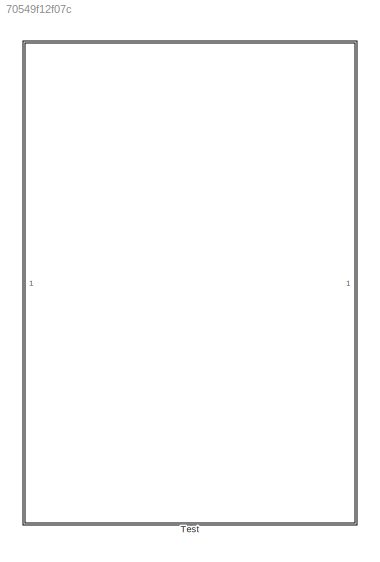
MODEL slx_70549f12f07c
KIND library
CONFIG AbsTol = auto
CONFIG EnableMultiTasking = off
CONFIG FixedStep = auto
CONFIG MaxStep = auto
CONFIG MinStep = auto
CONFIG RelTol = 1e-3
CONFIG SampleTimeConstraint = Unconstrained
CONFIG SolverName = VariableStepAuto
CONFIG StartTime = 0.0
CONFIG StopTime = 10.0
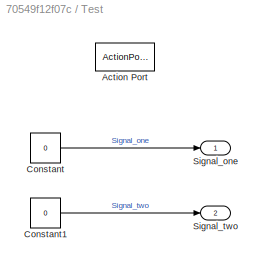
BLOCK [SubSystem] Test
  TreatAsAtomicUnit = on
BLOCK [ActionPort] Test/Action Port
  InitializeStates = reset
BLOCK [Constant] Test/Constant
  Value = 0
BLOCK [Constant] Test/Constant1
  Value = 0
BLOCK [Outport] Test/Signal_one
BLOCK [Outport] Test/Signal_two
  Port = 2
LINE Test/Constant1:1 -> Test/Signal_two:1
LINE Test/Constant:1 -> Test/Signal_one:1
